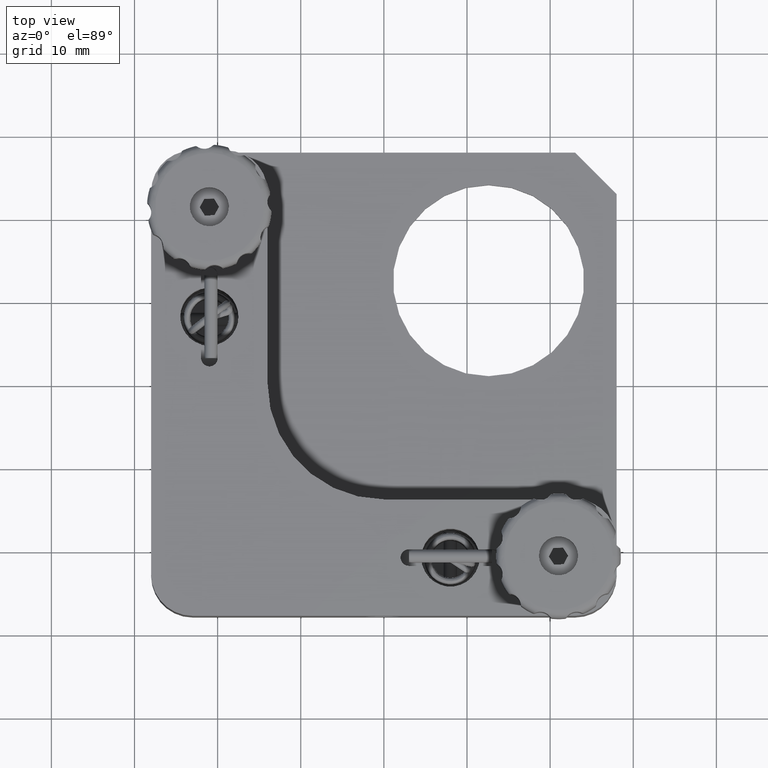
[diagram: clean part render]
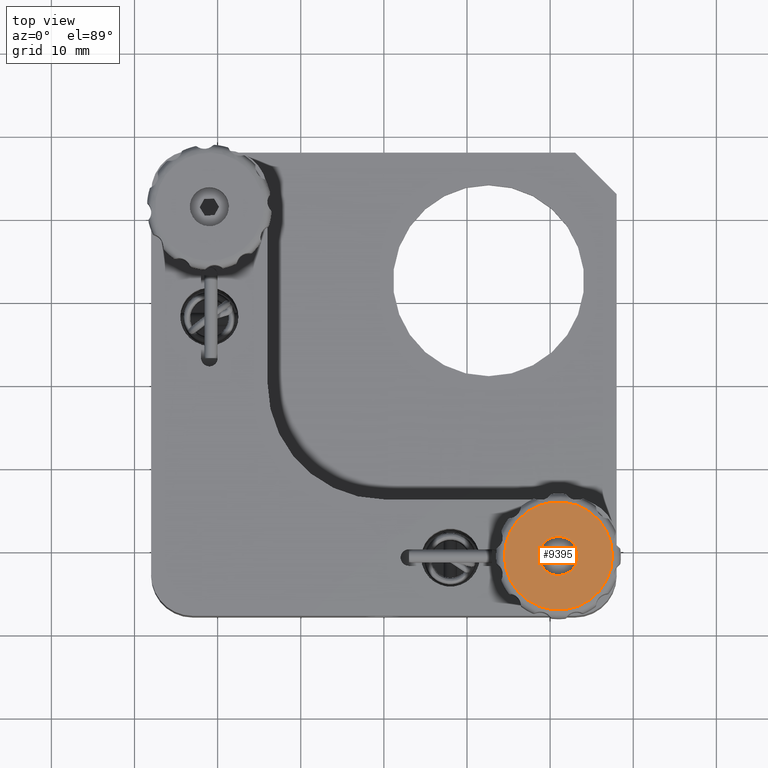
[diagram: same view with one face highlighted and labeled with its STEP entity id]
A machine part, top view. The second image highlights one B-rep face of the part: STEP entity #9395.
In plain terms, the highlighted planar face has unit normal (0, 0, 1).
Its self-contained STEP definition (entity closure, byte-faithful):
#214 = FACE_OUTER_BOUND ( 'NONE', #18944, .T. ) ;
#1218 = EDGE_CURVE ( 'NONE', #11000, #10131, #3490, .T. ) ;
#1468 = CIRCLE ( 'NONE', #1904, 2.349999999999997900 ) ;
#1598 = VERTEX_POINT ( 'NONE', #10766 ) ;
#1680 = DIRECTION ( 'NONE',  ( 0.0000000000000000000, 0.0000000000000000000, 1.000000000000000000 ) ) ;
#1904 = AXIS2_PLACEMENT_3D ( 'NONE', #14068, #14277, #6332 ) ;
#1944 = EDGE_LOOP ( 'NONE', ( #11122, #2958 ) ) ;
#2392 = CIRCLE ( 'NONE', #3389, 2.349999999999997900 ) ;
#2955 = EDGE_CURVE ( 'NONE', #10131, #11000, #3686, .T. ) ;
#2958 = ORIENTED_EDGE ( 'NONE', *, *, #12165, .F. ) ;
#2985 = DIRECTION ( 'NONE',  ( 1.000000000000000000, 0.0000000000000000000, 0.0000000000000000000 ) ) ;
#3355 = CARTESIAN_POINT ( 'NONE',  ( 20.99999999999998900, -21.00000000000000400, 18.36413291343751900 ) ) ;
#3389 = AXIS2_PLACEMENT_3D ( 'NONE', #18764, #12478, #2985 ) ;
#3490 = CIRCLE ( 'NONE', #18638, 6.499999999999992000 ) ;
#3686 = CIRCLE ( 'NONE', #17734, 6.499999999999992000 ) ;
#3786 = ORIENTED_EDGE ( 'NONE', *, *, #1218, .T. ) ;
#4029 = AXIS2_PLACEMENT_3D ( 'NONE', #3355, #15941, #4964 ) ;
#4964 = DIRECTION ( 'NONE',  ( 1.000000000000000000, -5.551115123125788900E-017, 0.0000000000000000000 ) ) ;
#5003 = CARTESIAN_POINT ( 'NONE',  ( 14.49999999999999300, -21.00000000000000400, 18.36413291343751900 ) ) ;
#5032 = PLANE ( 'NONE',  #4029 ) ;
#6332 = DIRECTION ( 'NONE',  ( 1.000000000000000000, 0.0000000000000000000, 0.0000000000000000000 ) ) ;
#6705 = DIRECTION ( 'NONE',  ( 0.0000000000000000000, 0.0000000000000000000, 1.000000000000000000 ) ) ;
#8059 = ORIENTED_EDGE ( 'NONE', *, *, #2955, .T. ) ;
#8379 = DIRECTION ( 'NONE',  ( 1.000000000000000000, 0.0000000000000000000, 0.0000000000000000000 ) ) ;
#9201 = EDGE_CURVE ( 'NONE', #14873, #1598, #1468, .T. ) ;
#9395 = ADVANCED_FACE ( 'NONE', ( #19609, #214 ), #5032, .T. ) ;
#9730 = DIRECTION ( 'NONE',  ( 1.000000000000000000, 0.0000000000000000000, 0.0000000000000000000 ) ) ;
#10131 = VERTEX_POINT ( 'NONE', #5003 ) ;
#10217 = CARTESIAN_POINT ( 'NONE',  ( 23.34999999999998700, -21.00000000000000400, 18.36413291343751900 ) ) ;
#10766 = CARTESIAN_POINT ( 'NONE',  ( 18.64999999999998800, -21.00000000000000400, 18.36413291343751900 ) ) ;
#11000 = VERTEX_POINT ( 'NONE', #19650 ) ;
#11122 = ORIENTED_EDGE ( 'NONE', *, *, #9201, .F. ) ;
#11170 = CARTESIAN_POINT ( 'NONE',  ( 20.99999999999998900, -21.00000000000000400, 18.36413291343751900 ) ) ;
#12165 = EDGE_CURVE ( 'NONE', #1598, #14873, #2392, .T. ) ;
#12478 = DIRECTION ( 'NONE',  ( 0.0000000000000000000, 0.0000000000000000000, 1.000000000000000000 ) ) ;
#14068 = CARTESIAN_POINT ( 'NONE',  ( 20.99999999999998900, -21.00000000000000400, 18.36413291343751900 ) ) ;
#14277 = DIRECTION ( 'NONE',  ( 0.0000000000000000000, 0.0000000000000000000, 1.000000000000000000 ) ) ;
#14873 = VERTEX_POINT ( 'NONE', #10217 ) ;
#15941 = DIRECTION ( 'NONE',  ( 0.0000000000000000000, 0.0000000000000000000, 1.000000000000000000 ) ) ;
#17734 = AXIS2_PLACEMENT_3D ( 'NONE', #11170, #1680, #9730 ) ;
#18638 = AXIS2_PLACEMENT_3D ( 'NONE', #19432, #6705, #8379 ) ;
#18764 = CARTESIAN_POINT ( 'NONE',  ( 20.99999999999998900, -21.00000000000000400, 18.36413291343751900 ) ) ;
#18944 = EDGE_LOOP ( 'NONE', ( #3786, #8059 ) ) ;
#19432 = CARTESIAN_POINT ( 'NONE',  ( 20.99999999999998900, -21.00000000000000400, 18.36413291343751900 ) ) ;
#19609 = FACE_BOUND ( 'NONE', #1944, .T. ) ;
#19650 = CARTESIAN_POINT ( 'NONE',  ( 27.49999999999998200, -21.00000000000000400, 18.36413291343751900 ) ) ;